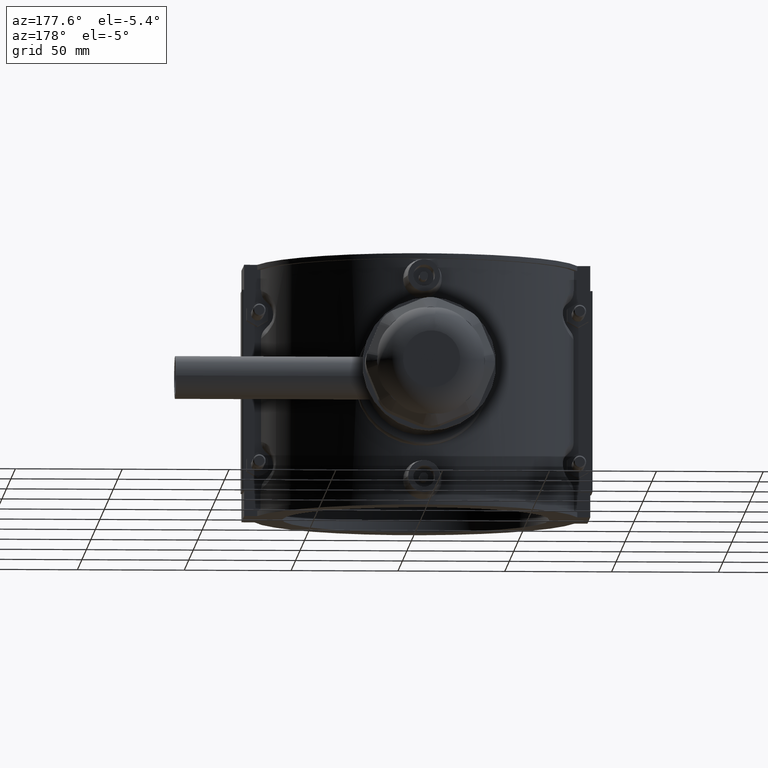
[diagram: clean part render]
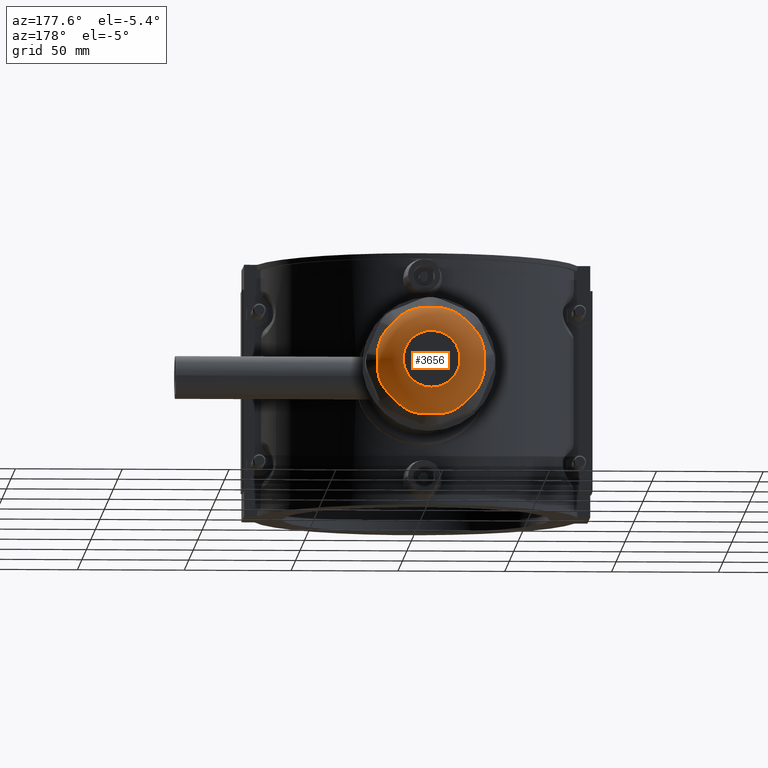
[diagram: same view with one face highlighted and labeled with its STEP entity id]
A machine part, auxiliary view. The second image highlights one B-rep face of the part: STEP entity #3656.
In plain terms, the highlighted toroidal blend (fillet) surface has major radius 13.3458 mm and minor (blend) radius 12.5 mm.
Its self-contained STEP definition (entity closure, byte-faithful):
#15=TOROIDAL_SURFACE('',#3897,13.3458333631272,12.5);
#801=CIRCLE('',#3870,25.);
#802=CIRCLE('',#3872,25.);
#803=CIRCLE('',#3874,25.);
#804=CIRCLE('',#3876,25.);
#805=CIRCLE('',#3878,25.);
#806=CIRCLE('',#3880,25.);
#807=CIRCLE('',#3882,25.);
#808=CIRCLE('',#3884,25.);
#813=CIRCLE('',#3898,13.3458333631272);
#910=FACE_BOUND('',#1240,.T.);
#1010=FACE_OUTER_BOUND('',#1239,.T.);
#1239=EDGE_LOOP('',(#2658,#2659,#2660,#2661,#2662,#2663,#2664,#2665,#2666,
#2667,#2668,#2669,#2670,#2671,#2672,#2673,#2674,#2675,#2676,#2677,#2678,
#2679,#2680,#2681,#2682,#2683,#2684,#2685,#2686,#2687,#2688,#2689));
#1240=EDGE_LOOP('',(#2690));
#1466=B_SPLINE_CURVE_WITH_KNOTS('',3,(#5323,#5324,#5325,#5326),
 .UNSPECIFIED.,.F.,.F.,(4,4),(1.08855433793764,1.23089313147004),
 .UNSPECIFIED.);
#1468=B_SPLINE_CURVE_WITH_KNOTS('',3,(#5359,#5360,#5361,#5362),
 .UNSPECIFIED.,.F.,.F.,(4,4),(0.,0.0873490999777743),.UNSPECIFIED.);
#1470=B_SPLINE_CURVE_WITH_KNOTS('',3,(#5370,#5371,#5372,#5373,#5374,#5375,
#5376,#5377,#5378,#5379,#5380,#5381,#5382,#5383,#5384),.UNSPECIFIED.,.F.,
 .F.,(4,2,2,3,2,2,4),(4.52220046310582,4.61628434124346,4.90606041344941,
5.19583648565536,5.48561255786132,5.77538863006727,5.8694725082049),
 .UNSPECIFIED.);
#1471=B_SPLINE_CURVE_WITH_KNOTS('',3,(#5403,#5404,#5405,#5406),
 .UNSPECIFIED.,.F.,.F.,(4,4),(1.08855433793769,1.23089313147009),
 .UNSPECIFIED.);
#1473=B_SPLINE_CURVE_WITH_KNOTS('',3,(#5439,#5440,#5441,#5442),
 .UNSPECIFIED.,.F.,.F.,(4,4),(0.,0.0873490999777791),.UNSPECIFIED.);
#1475=B_SPLINE_CURVE_WITH_KNOTS('',3,(#5450,#5451,#5452,#5453,#5454,#5455,
#5456,#5457,#5458,#5459,#5460,#5461,#5462,#5463,#5464),.UNSPECIFIED.,.F.,
 .F.,(4,2,2,3,2,2,4),(4.52220046310578,4.61628434124297,4.90606041344914,
5.19583648565532,5.48561255786149,5.77538863006766,5.86947250820485),
 .UNSPECIFIED.);
#1476=B_SPLINE_CURVE_WITH_KNOTS('',3,(#5483,#5484,#5485,#5486),
 .UNSPECIFIED.,.F.,.F.,(4,4),(1.08855433793773,1.23089313147014),
 .UNSPECIFIED.);
#1478=B_SPLINE_CURVE_WITH_KNOTS('',3,(#5519,#5520,#5521,#5522),
 .UNSPECIFIED.,.F.,.F.,(4,4),(0.,0.0873490999777642),.UNSPECIFIED.);
#1480=B_SPLINE_CURVE_WITH_KNOTS('',3,(#5530,#5531,#5532,#5533,#5534,#5535,
#5536,#5537,#5538,#5539,#5540,#5541,#5542,#5543,#5544),.UNSPECIFIED.,.F.,
 .F.,(4,2,2,3,2,2,4),(4.52220046310582,4.61628434124346,4.90606041344941,
5.19583648565536,5.48561255786131,5.77538863006726,5.8694725082049),
 .UNSPECIFIED.);
#1481=B_SPLINE_CURVE_WITH_KNOTS('',3,(#5563,#5564,#5565,#5566),
 .UNSPECIFIED.,.F.,.F.,(4,4),(1.08855433793765,1.23089313147006),
 .UNSPECIFIED.);
#1483=B_SPLINE_CURVE_WITH_KNOTS('',3,(#5599,#5600,#5601,#5602),
 .UNSPECIFIED.,.F.,.F.,(4,4),(0.,0.0873490999777652),.UNSPECIFIED.);
#1485=B_SPLINE_CURVE_WITH_KNOTS('',3,(#5610,#5611,#5612,#5613,#5614,#5615,
#5616,#5617,#5618,#5619,#5620,#5621,#5622,#5623,#5624),.UNSPECIFIED.,.F.,
 .F.,(4,2,2,3,2,2,4),(4.5222004631058,4.61628434124345,4.90606041344939,
5.19583648565534,5.48561255786128,5.77538863006723,5.86947250820488),
 .UNSPECIFIED.);
#1486=B_SPLINE_CURVE_WITH_KNOTS('',3,(#5643,#5644,#5645,#5646),
 .UNSPECIFIED.,.F.,.F.,(4,4),(1.08855433793767,1.23089313147008),
 .UNSPECIFIED.);
#1488=B_SPLINE_CURVE_WITH_KNOTS('',3,(#5679,#5680,#5681,#5682),
 .UNSPECIFIED.,.F.,.F.,(4,4),(0.,0.0873490999777749),.UNSPECIFIED.);
#1490=B_SPLINE_CURVE_WITH_KNOTS('',3,(#5690,#5691,#5692,#5693,#5694,#5695,
#5696,#5697,#5698,#5699,#5700,#5701,#5702,#5703,#5704),.UNSPECIFIED.,.F.,
 .F.,(4,2,2,3,2,2,4),(4.52220046310579,4.61628434124342,4.90606041344938,
5.19583648565534,5.4856125578613,5.77538863006725,5.86947250820488),
 .UNSPECIFIED.);
#1491=B_SPLINE_CURVE_WITH_KNOTS('',3,(#5723,#5724,#5725,#5726),
 .UNSPECIFIED.,.F.,.F.,(4,4),(1.08855433793773,1.23089313147015),
 .UNSPECIFIED.);
#1493=B_SPLINE_CURVE_WITH_KNOTS('',3,(#5759,#5760,#5761,#5762),
 .UNSPECIFIED.,.F.,.F.,(4,4),(0.,0.0873490999777837),.UNSPECIFIED.);
#1495=B_SPLINE_CURVE_WITH_KNOTS('',3,(#5770,#5771,#5772,#5773,#5774,#5775,
#5776,#5777,#5778,#5779,#5780,#5781,#5782,#5783,#5784),.UNSPECIFIED.,.F.,
 .F.,(4,2,2,3,2,2,4),(4.52220046310581,4.61628434124344,4.90606041344939,
5.19583648565535,5.4856125578613,5.77538863006725,5.86947250820489),
 .UNSPECIFIED.);
#1496=B_SPLINE_CURVE_WITH_KNOTS('',3,(#5803,#5804,#5805,#5806),
 .UNSPECIFIED.,.F.,.F.,(4,4),(1.08855433793748,1.23089313146985),
 .UNSPECIFIED.);
#1498=B_SPLINE_CURVE_WITH_KNOTS('',3,(#5839,#5840,#5841,#5842),
 .UNSPECIFIED.,.F.,.F.,(4,4),(0.,0.0873490999777666),.UNSPECIFIED.);
#1500=B_SPLINE_CURVE_WITH_KNOTS('',3,(#5850,#5851,#5852,#5853,#5854,#5855,
#5856,#5857,#5858,#5859,#5860,#5861,#5862,#5863,#5864),.UNSPECIFIED.,.F.,
 .F.,(4,2,2,3,2,2,4),(4.52220046310579,4.61628434124341,4.90606041344937,
5.19583648565533,5.48561255786128,5.77538863006724,5.86947250820487),
 .UNSPECIFIED.);
#1501=B_SPLINE_CURVE_WITH_KNOTS('',3,(#5883,#5884,#5885,#5886),
 .UNSPECIFIED.,.F.,.F.,(4,4),(1.08855433793768,1.2308931314701),
 .UNSPECIFIED.);
#1503=B_SPLINE_CURVE_WITH_KNOTS('',3,(#5910,#5911,#5912,#5913),
 .UNSPECIFIED.,.F.,.F.,(4,4),(0.,0.0873490999777558),.UNSPECIFIED.);
#1505=B_SPLINE_CURVE_WITH_KNOTS('',3,(#5921,#5922,#5923,#5924,#5925,#5926,
#5927,#5928,#5929,#5930,#5931,#5932,#5933,#5934,#5935),.UNSPECIFIED.,.F.,
 .F.,(4,2,2,3,2,2,4),(4.5222004631058,4.61628434124343,4.90606041344938,
5.19583648565534,5.48561255786129,5.77538863006725,5.86947250820488),
 .UNSPECIFIED.);
#1583=VERTEX_POINT('',#5299);
#1584=VERTEX_POINT('',#5301);
#1586=VERTEX_POINT('',#5322);
#1589=VERTEX_POINT('',#5335);
#1590=VERTEX_POINT('',#5337);
#1592=VERTEX_POINT('',#5358);
#1594=VERTEX_POINT('',#5402);
#1597=VERTEX_POINT('',#5415);
#1598=VERTEX_POINT('',#5417);
#1600=VERTEX_POINT('',#5438);
#1602=VERTEX_POINT('',#5482);
#1605=VERTEX_POINT('',#5495);
#1606=VERTEX_POINT('',#5497);
#1608=VERTEX_POINT('',#5518);
#1610=VERTEX_POINT('',#5562);
#1613=VERTEX_POINT('',#5575);
#1614=VERTEX_POINT('',#5577);
#1616=VERTEX_POINT('',#5598);
#1618=VERTEX_POINT('',#5642);
#1621=VERTEX_POINT('',#5655);
#1622=VERTEX_POINT('',#5657);
#1624=VERTEX_POINT('',#5678);
#1626=VERTEX_POINT('',#5722);
#1629=VERTEX_POINT('',#5735);
#1630=VERTEX_POINT('',#5737);
#1632=VERTEX_POINT('',#5758);
#1634=VERTEX_POINT('',#5802);
#1637=VERTEX_POINT('',#5815);
#1638=VERTEX_POINT('',#5817);
#1640=VERTEX_POINT('',#5838);
#1642=VERTEX_POINT('',#5882);
#1644=VERTEX_POINT('',#5909);
#1655=VERTEX_POINT('',#5988);
#1939=EDGE_CURVE('',#1584,#1586,#1466,.F.);
#1946=EDGE_CURVE('',#1592,#1589,#1468,.F.);
#1949=EDGE_CURVE('',#1586,#1592,#1470,.F.);
#1951=EDGE_CURVE('',#1590,#1594,#1471,.F.);
#1958=EDGE_CURVE('',#1600,#1597,#1473,.F.);
#1961=EDGE_CURVE('',#1594,#1600,#1475,.F.);
#1963=EDGE_CURVE('',#1598,#1602,#1476,.F.);
#1970=EDGE_CURVE('',#1608,#1605,#1478,.F.);
#1973=EDGE_CURVE('',#1602,#1608,#1480,.F.);
#1975=EDGE_CURVE('',#1606,#1610,#1481,.F.);
#1982=EDGE_CURVE('',#1616,#1613,#1483,.F.);
#1985=EDGE_CURVE('',#1610,#1616,#1485,.F.);
#1987=EDGE_CURVE('',#1614,#1618,#1486,.F.);
#1994=EDGE_CURVE('',#1624,#1621,#1488,.F.);
#1997=EDGE_CURVE('',#1618,#1624,#1490,.F.);
#1999=EDGE_CURVE('',#1622,#1626,#1491,.F.);
#2006=EDGE_CURVE('',#1632,#1629,#1493,.F.);
#2009=EDGE_CURVE('',#1626,#1632,#1495,.F.);
#2011=EDGE_CURVE('',#1630,#1634,#1496,.F.);
#2018=EDGE_CURVE('',#1640,#1637,#1498,.F.);
#2021=EDGE_CURVE('',#1634,#1640,#1500,.F.);
#2023=EDGE_CURVE('',#1638,#1642,#1501,.F.);
#2026=EDGE_CURVE('',#1644,#1583,#1503,.F.);
#2029=EDGE_CURVE('',#1642,#1644,#1505,.F.);
#2031=EDGE_CURVE('',#1606,#1605,#801,.T.);
#2032=EDGE_CURVE('',#1598,#1597,#802,.T.);
#2033=EDGE_CURVE('',#1590,#1589,#803,.T.);
#2034=EDGE_CURVE('',#1584,#1583,#804,.T.);
#2035=EDGE_CURVE('',#1638,#1637,#805,.T.);
#2036=EDGE_CURVE('',#1630,#1629,#806,.T.);
#2037=EDGE_CURVE('',#1622,#1621,#807,.T.);
#2038=EDGE_CURVE('',#1614,#1613,#808,.T.);
#2056=EDGE_CURVE('',#1655,#1655,#813,.T.);
#2658=ORIENTED_EDGE('',*,*,#2033,.T.);
#2659=ORIENTED_EDGE('',*,*,#1946,.F.);
#2660=ORIENTED_EDGE('',*,*,#1949,.F.);
#2661=ORIENTED_EDGE('',*,*,#1939,.F.);
#2662=ORIENTED_EDGE('',*,*,#2034,.T.);
#2663=ORIENTED_EDGE('',*,*,#2026,.F.);
#2664=ORIENTED_EDGE('',*,*,#2029,.F.);
#2665=ORIENTED_EDGE('',*,*,#2023,.F.);
#2666=ORIENTED_EDGE('',*,*,#2035,.T.);
#2667=ORIENTED_EDGE('',*,*,#2018,.F.);
#2668=ORIENTED_EDGE('',*,*,#2021,.F.);
#2669=ORIENTED_EDGE('',*,*,#2011,.F.);
#2670=ORIENTED_EDGE('',*,*,#2036,.T.);
#2671=ORIENTED_EDGE('',*,*,#2006,.F.);
#2672=ORIENTED_EDGE('',*,*,#2009,.F.);
#2673=ORIENTED_EDGE('',*,*,#1999,.F.);
#2674=ORIENTED_EDGE('',*,*,#2037,.T.);
#2675=ORIENTED_EDGE('',*,*,#1994,.F.);
#2676=ORIENTED_EDGE('',*,*,#1997,.F.);
#2677=ORIENTED_EDGE('',*,*,#1987,.F.);
#2678=ORIENTED_EDGE('',*,*,#2038,.T.);
#2679=ORIENTED_EDGE('',*,*,#1982,.F.);
#2680=ORIENTED_EDGE('',*,*,#1985,.F.);
#2681=ORIENTED_EDGE('',*,*,#1975,.F.);
#2682=ORIENTED_EDGE('',*,*,#2031,.T.);
#2683=ORIENTED_EDGE('',*,*,#1970,.F.);
#2684=ORIENTED_EDGE('',*,*,#1973,.F.);
#2685=ORIENTED_EDGE('',*,*,#1963,.F.);
#2686=ORIENTED_EDGE('',*,*,#2032,.T.);
#2687=ORIENTED_EDGE('',*,*,#1958,.F.);
#2688=ORIENTED_EDGE('',*,*,#1961,.F.);
#2689=ORIENTED_EDGE('',*,*,#1951,.F.);
#2690=ORIENTED_EDGE('',*,*,#2056,.T.);
#3656=ADVANCED_FACE('',(#1010,#910),#15,.T.);
#3870=AXIS2_PLACEMENT_3D('',#5938,#4279,#4280);
#3872=AXIS2_PLACEMENT_3D('',#5940,#4283,#4284);
#3874=AXIS2_PLACEMENT_3D('',#5942,#4287,#4288);
#3876=AXIS2_PLACEMENT_3D('',#5944,#4291,#4292);
#3878=AXIS2_PLACEMENT_3D('',#5946,#4295,#4296);
#3880=AXIS2_PLACEMENT_3D('',#5948,#4299,#4300);
#3882=AXIS2_PLACEMENT_3D('',#5950,#4303,#4304);
#3884=AXIS2_PLACEMENT_3D('',#5952,#4307,#4308);
#3897=AXIS2_PLACEMENT_3D('',#5987,#4346,#4347);
#3898=AXIS2_PLACEMENT_3D('',#5989,#4348,#4349);
#4279=DIRECTION('center_axis',(0.,1.,3.06161699786838E-16));
#4280=DIRECTION('ref_axis',(1.,0.,0.));
#4283=DIRECTION('center_axis',(0.,1.,3.06161699786838E-16));
#4284=DIRECTION('ref_axis',(1.,0.,0.));
#4287=DIRECTION('center_axis',(0.,1.,3.06161699786838E-16));
#4288=DIRECTION('ref_axis',(1.,0.,0.));
#4291=DIRECTION('center_axis',(0.,1.,3.06161699786838E-16));
#4292=DIRECTION('ref_axis',(1.,0.,0.));
#4295=DIRECTION('center_axis',(0.,1.,3.06161699786838E-16));
#4296=DIRECTION('ref_axis',(1.,0.,0.));
#4299=DIRECTION('center_axis',(0.,1.,3.06161699786838E-16));
#4300=DIRECTION('ref_axis',(1.,0.,0.));
#4303=DIRECTION('center_axis',(0.,1.,3.06161699786838E-16));
#4304=DIRECTION('ref_axis',(1.,0.,0.));
#4307=DIRECTION('center_axis',(0.,1.,3.06161699786838E-16));
#4308=DIRECTION('ref_axis',(1.,0.,0.));
#4346=DIRECTION('center_axis',(0.,1.,3.06161699786838E-16));
#4347=DIRECTION('ref_axis',(-6.12323399573677E-17,0.,1.));
#4348=DIRECTION('center_axis',(0.,-1.,-3.06161699786838E-16));
#4349=DIRECTION('ref_axis',(-6.12323399573677E-17,-3.32754948879419E-16,
1.));
#5299=CARTESIAN_POINT('',(-19.126208678676,168.52,-16.099321152761));
#5301=CARTESIAN_POINT('',(-16.099321152761,168.52,-19.126208678676));
#5322=CARTESIAN_POINT('',(-15.5196838126061,168.20758258967,-19.7477336477909));
#5323=CARTESIAN_POINT('Ctrl Pts',(-15.5196838126062,168.20758258967,-19.7477336477908));
#5324=CARTESIAN_POINT('Ctrl Pts',(-15.7224557817307,168.327642621569,-19.5337907060166));
#5325=CARTESIAN_POINT('Ctrl Pts',(-15.9151953273503,168.432147372631,-19.3257322216333));
#5326=CARTESIAN_POINT('Ctrl Pts',(-16.099321152761,168.52,-19.126208678676));
#5335=CARTESIAN_POINT('',(-2.14033269546344,168.52,-24.9082110146981));
#5337=CARTESIAN_POINT('',(2.14033269546349,168.52,-24.9082110146981));
#5358=CARTESIAN_POINT('',(-2.98968270965376,168.20758258967,-24.9378300411836));
#5359=CARTESIAN_POINT('Ctrl Pts',(-2.14033269546344,168.52,-24.9082110146981));
#5360=CARTESIAN_POINT('Ctrl Pts',(-2.41713157276955,168.430360466263,-24.9193203016705));
#5361=CARTESIAN_POINT('Ctrl Pts',(-2.70023309130938,168.325518860951,-24.93007069856));
#5362=CARTESIAN_POINT('Ctrl Pts',(-2.98968270965375,168.20758258967,-24.9378300411836));
#5370=CARTESIAN_POINT('Ctrl Pts',(-2.98968270965461,168.20758258967,-24.9378300411836));
#5371=CARTESIAN_POINT('Ctrl Pts',(-3.30765873628699,168.078023230939,-24.9463540978081));
#5372=CARTESIAN_POINT('Ctrl Pts',(-3.62686123918216,167.960011468837,-24.9418711028071));
#5373=CARTESIAN_POINT('Ctrl Pts',(-4.83691219495735,167.54775242088,-24.8868775637717));
#5374=CARTESIAN_POINT('Ctrl Pts',(-5.85136238792362,167.290865148452,-24.7447313155233));
#5375=CARTESIAN_POINT('Ctrl Pts',(-7.86763062559708,166.95829329166,-24.2695388499253));
#5376=CARTESIAN_POINT('Ctrl Pts',(-8.86947972560032,166.882230191359,-23.9368894717484));
#5377=CARTESIAN_POINT('Ctrl Pts',(-9.76187366600896,166.882230191359,-23.5672477986516));
#5378=CARTESIAN_POINT('Ctrl Pts',(-10.6542676064176,166.882230191359,-23.1976061255547));
#5379=CARTESIAN_POINT('Ctrl Pts',(-11.5979005298219,166.95829329166,-22.7244104642832));
#5380=CARTESIAN_POINT('Ctrl Pts',(-13.359629288165,167.290865148452,-21.6347053355264));
#5381=CARTESIAN_POINT('Ctrl Pts',(-14.1774664748441,167.54775242088,-21.0178933009606));
#5382=CARTESIAN_POINT('Ctrl Pts',(-15.0719880156274,167.960011468837,-20.2011443689241));
#5383=CARTESIAN_POINT('Ctrl Pts',(-15.3008682261614,168.078023230939,-19.9786040707204));
#5384=CARTESIAN_POINT('Ctrl Pts',(-15.5196838126056,168.20758258967,-19.7477336477915));
#5402=CARTESIAN_POINT('',(2.98968270965381,168.20758258967,-24.9378300411836));
#5403=CARTESIAN_POINT('Ctrl Pts',(2.98968270965379,168.20758258967,-24.9378300411836));
#5404=CARTESIAN_POINT('Ctrl Pts',(2.69502077033574,168.327642621569,-24.9299309706705));
#5405=CARTESIAN_POINT('Ctrl Pts',(2.41161376543449,168.432147372631,-24.9190988451901));
#5406=CARTESIAN_POINT('Ctrl Pts',(2.14033269546349,168.52,-24.9082110146981));
#5415=CARTESIAN_POINT('',(16.099321152761,168.52,-19.126208678676));
#5417=CARTESIAN_POINT('',(19.126208678676,168.52,-16.099321152761));
#5438=CARTESIAN_POINT('',(15.5196838126062,168.20758258967,-19.7477336477908));
#5439=CARTESIAN_POINT('Ctrl Pts',(16.099321152761,168.52,-19.126208678676));
#5440=CARTESIAN_POINT('Ctrl Pts',(15.9114502417453,168.430360466263,-19.3297904939963));
#5441=CARTESIAN_POINT('Ctrl Pts',(15.7188689167627,168.325518860951,-19.537575176061));
#5442=CARTESIAN_POINT('Ctrl Pts',(15.5196838126062,168.20758258967,-19.7477336477909));
#5450=CARTESIAN_POINT('Ctrl Pts',(15.5196838126056,168.20758258967,-19.7477336477915));
#5451=CARTESIAN_POINT('Ctrl Pts',(15.3008682261625,168.07802323094,-19.9786040707193));
#5452=CARTESIAN_POINT('Ctrl Pts',(15.0719880156297,167.960011468839,-20.2011443689218));
#5453=CARTESIAN_POINT('Ctrl Pts',(14.1774664748473,167.547752420881,-21.0178933009581));
#5454=CARTESIAN_POINT('Ctrl Pts',(13.3596292881678,167.290865148453,-21.6347053355244));
#5455=CARTESIAN_POINT('Ctrl Pts',(11.5979005298236,166.95829329166,-22.7244104642823));
#5456=CARTESIAN_POINT('Ctrl Pts',(10.6542676064179,166.88223019136,-23.1976061255535));
#5457=CARTESIAN_POINT('Ctrl Pts',(9.76187366600857,166.88223019136,-23.5672477986506));
#5458=CARTESIAN_POINT('Ctrl Pts',(8.86947972559924,166.88223019136,-23.9368894717477));
#5459=CARTESIAN_POINT('Ctrl Pts',(7.86763062559531,166.95829329166,-24.2695388499259));
#5460=CARTESIAN_POINT('Ctrl Pts',(5.85136238792033,167.290865148453,-24.7447313155239));
#5461=CARTESIAN_POINT('Ctrl Pts',(4.83691219495331,167.547752420881,-24.8868775637722));
#5462=CARTESIAN_POINT('Ctrl Pts',(3.62686123917896,167.960011468839,-24.9418711028072));
#5463=CARTESIAN_POINT('Ctrl Pts',(3.30765873628549,168.07802323094,-24.946354097808));
#5464=CARTESIAN_POINT('Ctrl Pts',(2.98968270965467,168.20758258967,-24.9378300411836));
#5482=CARTESIAN_POINT('',(19.7477336477909,168.20758258967,-15.5196838126061));
#5483=CARTESIAN_POINT('Ctrl Pts',(19.7477336477909,168.20758258967,-15.5196838126061));
#5484=CARTESIAN_POINT('Ctrl Pts',(19.5337907060166,168.327642621569,-15.7224557817306));
#5485=CARTESIAN_POINT('Ctrl Pts',(19.3257322216333,168.432147372631,-15.9151953273502));
#5486=CARTESIAN_POINT('Ctrl Pts',(19.126208678676,168.52,-16.099321152761));
#5495=CARTESIAN_POINT('',(24.9082110146982,168.52,-2.14033269546337));
#5497=CARTESIAN_POINT('',(24.9082110146982,168.52,2.14033269546347));
#5518=CARTESIAN_POINT('',(24.9378300411836,168.20758258967,-2.98968270965374));
#5519=CARTESIAN_POINT('Ctrl Pts',(24.9082110146981,168.52,-2.14033269546338));
#5520=CARTESIAN_POINT('Ctrl Pts',(24.9193203016705,168.430360466263,-2.41713157276946));
#5521=CARTESIAN_POINT('Ctrl Pts',(24.93007069856,168.325518860951,-2.70023309130931));
#5522=CARTESIAN_POINT('Ctrl Pts',(24.9378300411836,168.20758258967,-2.98968270965376));
#5530=CARTESIAN_POINT('Ctrl Pts',(24.9378300411836,168.20758258967,-2.9896827096546));
#5531=CARTESIAN_POINT('Ctrl Pts',(24.9463540978081,168.078023230939,-3.30765873628699));
#5532=CARTESIAN_POINT('Ctrl Pts',(24.9418711028072,167.960011468837,-3.62686123918216));
#5533=CARTESIAN_POINT('Ctrl Pts',(24.8868775637717,167.54775242088,-4.83691219495736));
#5534=CARTESIAN_POINT('Ctrl Pts',(24.7447313155233,167.290865148452,-5.85136238792362));
#5535=CARTESIAN_POINT('Ctrl Pts',(24.2695388499253,166.95829329166,-7.86763062559706));
#5536=CARTESIAN_POINT('Ctrl Pts',(23.9368894717484,166.882230191359,-8.86947972560028));
#5537=CARTESIAN_POINT('Ctrl Pts',(23.5672477986516,166.882230191359,-9.76187366600891));
#5538=CARTESIAN_POINT('Ctrl Pts',(23.1976061255548,166.882230191359,-10.6542676064175));
#5539=CARTESIAN_POINT('Ctrl Pts',(22.7244104642832,166.95829329166,-11.5979005298218));
#5540=CARTESIAN_POINT('Ctrl Pts',(21.6347053355264,167.290865148452,-13.3596292881649));
#5541=CARTESIAN_POINT('Ctrl Pts',(21.0178933009606,167.54775242088,-14.177466474844));
#5542=CARTESIAN_POINT('Ctrl Pts',(20.2011443689241,167.960011468837,-15.0719880156273));
#5543=CARTESIAN_POINT('Ctrl Pts',(19.9786040707204,168.078023230939,-15.3008682261614));
#5544=CARTESIAN_POINT('Ctrl Pts',(19.7477336477915,168.20758258967,-15.5196838126055));
#5562=CARTESIAN_POINT('',(24.9378300411836,168.20758258967,2.98968270965383));
#5563=CARTESIAN_POINT('Ctrl Pts',(24.9378300411836,168.20758258967,2.98968270965384));
#5564=CARTESIAN_POINT('Ctrl Pts',(24.9299309706705,168.327642621569,2.69502077033577));
#5565=CARTESIAN_POINT('Ctrl Pts',(24.9190988451901,168.432147372631,2.41161376543449));
#5566=CARTESIAN_POINT('Ctrl Pts',(24.9082110146982,168.52,2.14033269546348));
#5575=CARTESIAN_POINT('',(19.126208678676,168.52,16.0993211527611));
#5577=CARTESIAN_POINT('',(16.0993211527611,168.52,19.126208678676));
#5598=CARTESIAN_POINT('',(19.7477336477909,168.20758258967,15.5196838126062));
#5599=CARTESIAN_POINT('Ctrl Pts',(19.126208678676,168.52,16.0993211527611));
#5600=CARTESIAN_POINT('Ctrl Pts',(19.3297904939962,168.430360466263,15.9114502417454));
#5601=CARTESIAN_POINT('Ctrl Pts',(19.537575176061,168.325518860951,15.7188689167627));
#5602=CARTESIAN_POINT('Ctrl Pts',(19.7477336477909,168.20758258967,15.5196838126062));
#5610=CARTESIAN_POINT('Ctrl Pts',(19.7477336477915,168.20758258967,15.5196838126056));
#5611=CARTESIAN_POINT('Ctrl Pts',(19.9786040707205,168.078023230939,15.3008682261615));
#5612=CARTESIAN_POINT('Ctrl Pts',(20.2011443689242,167.960011468837,15.0719880156274));
#5613=CARTESIAN_POINT('Ctrl Pts',(21.0178933009607,167.54775242088,14.177466474844));
#5614=CARTESIAN_POINT('Ctrl Pts',(21.6347053355264,167.290865148452,13.3596292881649));
#5615=CARTESIAN_POINT('Ctrl Pts',(22.7244104642832,166.95829329166,11.5979005298219));
#5616=CARTESIAN_POINT('Ctrl Pts',(23.1976061255548,166.882230191359,10.6542676064176));
#5617=CARTESIAN_POINT('Ctrl Pts',(23.5672477986516,166.882230191359,9.76187366600901));
#5618=CARTESIAN_POINT('Ctrl Pts',(23.9368894717484,166.882230191359,8.86947972560039));
#5619=CARTESIAN_POINT('Ctrl Pts',(24.2695388499253,166.95829329166,7.86763062559718));
#5620=CARTESIAN_POINT('Ctrl Pts',(24.7447313155233,167.290865148452,5.85136238792377));
#5621=CARTESIAN_POINT('Ctrl Pts',(24.8868775637717,167.54775242088,4.83691219495752));
#5622=CARTESIAN_POINT('Ctrl Pts',(24.9418711028072,167.960011468837,3.62686123918231));
#5623=CARTESIAN_POINT('Ctrl Pts',(24.9463540978081,168.078023230939,3.30765873628713));
#5624=CARTESIAN_POINT('Ctrl Pts',(24.9378300411836,168.20758258967,2.9896827096547));
#5642=CARTESIAN_POINT('',(15.5196838126061,168.20758258967,19.7477336477909));
#5643=CARTESIAN_POINT('Ctrl Pts',(15.5196838126062,168.20758258967,19.7477336477909));
#5644=CARTESIAN_POINT('Ctrl Pts',(15.7224557817307,168.327642621569,19.5337907060166));
#5645=CARTESIAN_POINT('Ctrl Pts',(15.9151953273503,168.432147372632,19.3257322216334));
#5646=CARTESIAN_POINT('Ctrl Pts',(16.099321152761,168.52,19.126208678676));
#5655=CARTESIAN_POINT('',(2.14033269546345,168.52,24.9082110146982));
#5657=CARTESIAN_POINT('',(-2.14033269546348,168.52,24.9082110146982));
#5678=CARTESIAN_POINT('',(2.98968270965377,168.20758258967,24.9378300411836));
#5679=CARTESIAN_POINT('Ctrl Pts',(2.14033269546345,168.52,24.9082110146982));
#5680=CARTESIAN_POINT('Ctrl Pts',(2.41713157276957,168.430360466263,24.9193203016705));
#5681=CARTESIAN_POINT('Ctrl Pts',(2.70023309130939,168.325518860951,24.9300706985601));
#5682=CARTESIAN_POINT('Ctrl Pts',(2.98968270965376,168.20758258967,24.9378300411836));
#5690=CARTESIAN_POINT('Ctrl Pts',(2.98968270965462,168.20758258967,24.9378300411836));
#5691=CARTESIAN_POINT('Ctrl Pts',(3.30765873628695,168.078023230939,24.9463540978082));
#5692=CARTESIAN_POINT('Ctrl Pts',(3.62686123918203,167.960011468837,24.9418711028072));
#5693=CARTESIAN_POINT('Ctrl Pts',(4.83691219495719,167.54775242088,24.8868775637718));
#5694=CARTESIAN_POINT('Ctrl Pts',(5.85136238792349,167.290865148452,24.7447313155234));
#5695=CARTESIAN_POINT('Ctrl Pts',(7.86763062559701,166.95829329166,24.2695388499254));
#5696=CARTESIAN_POINT('Ctrl Pts',(8.86947972560028,166.882230191359,23.9368894717485));
#5697=CARTESIAN_POINT('Ctrl Pts',(9.76187366600895,166.882230191359,23.5672477986516));
#5698=CARTESIAN_POINT('Ctrl Pts',(10.6542676064176,166.882230191359,23.1976061255548));
#5699=CARTESIAN_POINT('Ctrl Pts',(11.5979005298219,166.95829329166,22.7244104642832));
#5700=CARTESIAN_POINT('Ctrl Pts',(13.3596292881651,167.290865148452,21.6347053355263));
#5701=CARTESIAN_POINT('Ctrl Pts',(14.1774664748442,167.54775242088,21.0178933009605));
#5702=CARTESIAN_POINT('Ctrl Pts',(15.0719880156275,167.960011468837,20.2011443689241));
#5703=CARTESIAN_POINT('Ctrl Pts',(15.3008682261615,168.078023230939,19.9786040707204));
#5704=CARTESIAN_POINT('Ctrl Pts',(15.5196838126056,168.20758258967,19.7477336477915));
#5722=CARTESIAN_POINT('',(-2.9896827096538,168.20758258967,24.9378300411836));
#5723=CARTESIAN_POINT('Ctrl Pts',(-2.98968270965378,168.20758258967,24.9378300411836));
#5724=CARTESIAN_POINT('Ctrl Pts',(-2.69502077033573,168.327642621569,24.9299309706705));
#5725=CARTESIAN_POINT('Ctrl Pts',(-2.41161376543448,168.432147372631,24.9190988451901));
#5726=CARTESIAN_POINT('Ctrl Pts',(-2.14033269546347,168.52,24.9082110146982));
#5735=CARTESIAN_POINT('',(-16.099321152761,168.52,19.1262086786761));
#5737=CARTESIAN_POINT('',(-19.126208678676,168.52,16.0993211527611));
#5758=CARTESIAN_POINT('',(-15.5196838126062,168.20758258967,19.7477336477909));
#5759=CARTESIAN_POINT('Ctrl Pts',(-16.099321152761,168.52,19.126208678676));
#5760=CARTESIAN_POINT('Ctrl Pts',(-15.9114502417453,168.430360466263,19.3297904939963));
#5761=CARTESIAN_POINT('Ctrl Pts',(-15.7188689167627,168.325518860951,19.5375751760611));
#5762=CARTESIAN_POINT('Ctrl Pts',(-15.5196838126062,168.20758258967,19.7477336477909));
#5770=CARTESIAN_POINT('Ctrl Pts',(-15.5196838126056,168.20758258967,19.7477336477915));
#5771=CARTESIAN_POINT('Ctrl Pts',(-15.3008682261615,168.078023230939,19.9786040707204));
#5772=CARTESIAN_POINT('Ctrl Pts',(-15.0719880156274,167.960011468837,20.2011443689241));
#5773=CARTESIAN_POINT('Ctrl Pts',(-14.1774664748442,167.54775242088,21.0178933009606));
#5774=CARTESIAN_POINT('Ctrl Pts',(-13.359629288165,167.290865148452,21.6347053355264));
#5775=CARTESIAN_POINT('Ctrl Pts',(-11.5979005298219,166.95829329166,22.7244104642832));
#5776=CARTESIAN_POINT('Ctrl Pts',(-10.6542676064176,166.882230191359,23.1976061255548));
#5777=CARTESIAN_POINT('Ctrl Pts',(-9.76187366600897,166.882230191359,23.5672477986516));
#5778=CARTESIAN_POINT('Ctrl Pts',(-8.86947972560032,166.882230191359,23.9368894717485));
#5779=CARTESIAN_POINT('Ctrl Pts',(-7.86763062559707,166.95829329166,24.2695388499254));
#5780=CARTESIAN_POINT('Ctrl Pts',(-5.85136238792359,167.290865148452,24.7447313155234));
#5781=CARTESIAN_POINT('Ctrl Pts',(-4.8369121949573,167.54775242088,24.8868775637718));
#5782=CARTESIAN_POINT('Ctrl Pts',(-3.62686123918213,167.960011468837,24.9418711028072));
#5783=CARTESIAN_POINT('Ctrl Pts',(-3.30765873628701,168.078023230939,24.9463540978081));
#5784=CARTESIAN_POINT('Ctrl Pts',(-2.98968270965466,168.20758258967,24.9378300411836));
#5802=CARTESIAN_POINT('',(-19.7477336477909,168.20758258967,15.5196838126062));
#5803=CARTESIAN_POINT('Ctrl Pts',(-19.7477336477909,168.20758258967,15.5196838126062));
#5804=CARTESIAN_POINT('Ctrl Pts',(-19.5337907060166,168.327642621569,15.7224557817307));
#5805=CARTESIAN_POINT('Ctrl Pts',(-19.3257322216333,168.432147372631,15.9151953273503));
#5806=CARTESIAN_POINT('Ctrl Pts',(-19.126208678676,168.52,16.0993211527611));
#5815=CARTESIAN_POINT('',(-24.9082110146982,168.52,2.14033269546345));
#5817=CARTESIAN_POINT('',(-24.9082110146982,168.52,-2.1403326954634));
#5838=CARTESIAN_POINT('',(-24.9378300411836,168.20758258967,2.98968270965382));
#5839=CARTESIAN_POINT('Ctrl Pts',(-24.9082110146982,168.52,2.14033269546345));
#5840=CARTESIAN_POINT('Ctrl Pts',(-24.9193203016705,168.430360466263,2.41713157276954));
#5841=CARTESIAN_POINT('Ctrl Pts',(-24.93007069856,168.325518860951,2.70023309130936));
#5842=CARTESIAN_POINT('Ctrl Pts',(-24.9378300411836,168.20758258967,2.9896827096538));
#5850=CARTESIAN_POINT('Ctrl Pts',(-24.9378300411836,168.20758258967,2.98968270965468));
#5851=CARTESIAN_POINT('Ctrl Pts',(-24.9463540978081,168.078023230939,3.307658736287));
#5852=CARTESIAN_POINT('Ctrl Pts',(-24.9418711028072,167.960011468837,3.62686123918209));
#5853=CARTESIAN_POINT('Ctrl Pts',(-24.8868775637718,167.54775242088,4.83691219495724));
#5854=CARTESIAN_POINT('Ctrl Pts',(-24.7447313155233,167.290865148452,5.85136238792354));
#5855=CARTESIAN_POINT('Ctrl Pts',(-24.2695388499253,166.95829329166,7.86763062559705));
#5856=CARTESIAN_POINT('Ctrl Pts',(-23.9368894717484,166.882230191359,8.86947972560032));
#5857=CARTESIAN_POINT('Ctrl Pts',(-23.5672477986516,166.882230191359,9.76187366600898));
#5858=CARTESIAN_POINT('Ctrl Pts',(-23.1976061255548,166.882230191359,10.6542676064176));
#5859=CARTESIAN_POINT('Ctrl Pts',(-22.7244104642832,166.95829329166,11.597900529822));
#5860=CARTESIAN_POINT('Ctrl Pts',(-21.6347053355263,167.290865148452,13.3596292881651));
#5861=CARTESIAN_POINT('Ctrl Pts',(-21.0178933009605,167.54775242088,14.1774664748442));
#5862=CARTESIAN_POINT('Ctrl Pts',(-20.201144368924,167.960011468837,15.0719880156275));
#5863=CARTESIAN_POINT('Ctrl Pts',(-19.9786040707204,168.078023230939,15.3008682261615));
#5864=CARTESIAN_POINT('Ctrl Pts',(-19.7477336477915,168.20758258967,15.5196838126056));
#5882=CARTESIAN_POINT('',(-24.9378300411836,168.20758258967,-2.98968270965376));
#5883=CARTESIAN_POINT('Ctrl Pts',(-24.9378300411836,168.20758258967,-2.98968270965374));
#5884=CARTESIAN_POINT('Ctrl Pts',(-24.9299309706705,168.327642621569,-2.69502077033568));
#5885=CARTESIAN_POINT('Ctrl Pts',(-24.9190988451901,168.432147372631,-2.41161376543441));
#5886=CARTESIAN_POINT('Ctrl Pts',(-24.9082110146982,168.52,-2.14033269546339));
#5909=CARTESIAN_POINT('',(-19.7477336477909,168.20758258967,-15.5196838126061));
#5910=CARTESIAN_POINT('Ctrl Pts',(-19.126208678676,168.52,-16.099321152761));
#5911=CARTESIAN_POINT('Ctrl Pts',(-19.3297904939962,168.430360466263,-15.9114502417454));
#5912=CARTESIAN_POINT('Ctrl Pts',(-19.537575176061,168.325518860951,-15.7188689167627));
#5913=CARTESIAN_POINT('Ctrl Pts',(-19.7477336477909,168.20758258967,-15.5196838126061));
#5921=CARTESIAN_POINT('Ctrl Pts',(-19.7477336477915,168.20758258967,-15.5196838126055));
#5922=CARTESIAN_POINT('Ctrl Pts',(-19.9786040707204,168.078023230939,-15.3008682261614));
#5923=CARTESIAN_POINT('Ctrl Pts',(-20.2011443689241,167.960011468837,-15.0719880156274));
#5924=CARTESIAN_POINT('Ctrl Pts',(-21.0178933009606,167.54775242088,-14.1774664748441));
#5925=CARTESIAN_POINT('Ctrl Pts',(-21.6347053355263,167.290865148452,-13.359629288165));
#5926=CARTESIAN_POINT('Ctrl Pts',(-22.7244104642832,166.95829329166,-11.5979005298219));
#5927=CARTESIAN_POINT('Ctrl Pts',(-23.1976061255548,166.882230191359,-10.6542676064176));
#5928=CARTESIAN_POINT('Ctrl Pts',(-23.5672477986516,166.882230191359,-9.76187366600892));
#5929=CARTESIAN_POINT('Ctrl Pts',(-23.9368894717484,166.882230191359,-8.86947972560028));
#5930=CARTESIAN_POINT('Ctrl Pts',(-24.2695388499253,166.95829329166,-7.86763062559703));
#5931=CARTESIAN_POINT('Ctrl Pts',(-24.7447313155233,167.290865148452,-5.85136238792353));
#5932=CARTESIAN_POINT('Ctrl Pts',(-24.8868775637718,167.54775242088,-4.83691219495724));
#5933=CARTESIAN_POINT('Ctrl Pts',(-24.9418711028072,167.960011468837,-3.62686123918207));
#5934=CARTESIAN_POINT('Ctrl Pts',(-24.9463540978081,168.078023230939,-3.30765873628696));
#5935=CARTESIAN_POINT('Ctrl Pts',(-24.9378300411836,168.20758258967,-2.98968270965462));
#5938=CARTESIAN_POINT('Origin',(0.,168.52,3.24592634114006E-14));
#5940=CARTESIAN_POINT('Origin',(0.,168.52,3.24592634114006E-14));
#5942=CARTESIAN_POINT('Origin',(0.,168.52,3.24592634114006E-14));
#5944=CARTESIAN_POINT('Origin',(0.,168.52,3.24592634114006E-14));
#5946=CARTESIAN_POINT('Origin',(0.,168.52,3.24592634114006E-14));
#5948=CARTESIAN_POINT('Origin',(0.,168.52,3.24592634114006E-14));
#5950=CARTESIAN_POINT('Origin',(0.,168.52,3.24592634114006E-14));
#5952=CARTESIAN_POINT('Origin',(0.,168.52,3.24592634114006E-14));
#5987=CARTESIAN_POINT('Origin',(0.,164.,3.10754125283641E-14));
#5988=CARTESIAN_POINT('',(2.45158981651615E-15,176.5,-13.3458333631271));
#5989=CARTESIAN_POINT('Origin',(0.,176.5,3.49024337756996E-14));